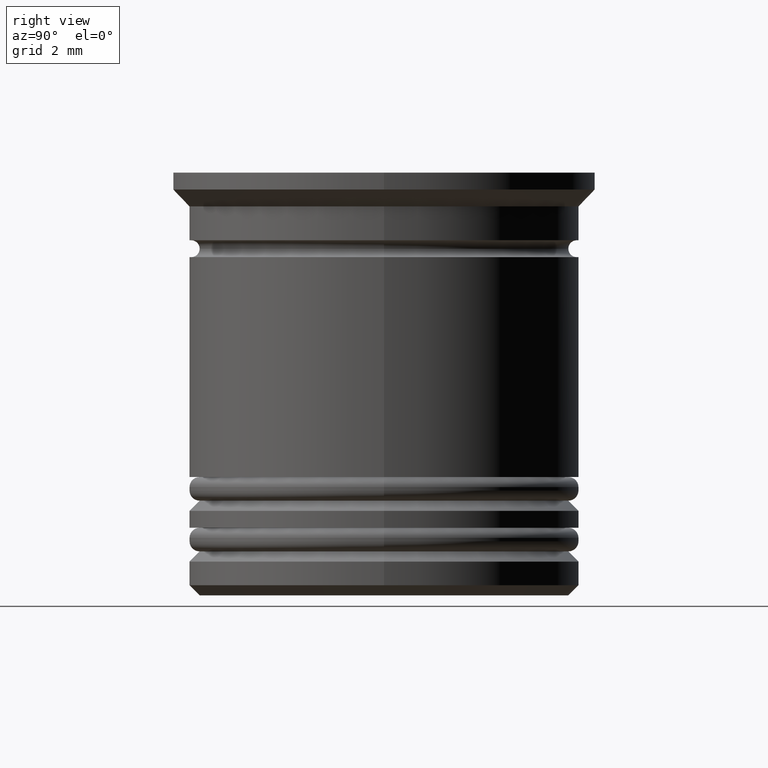
[diagram: clean part render]
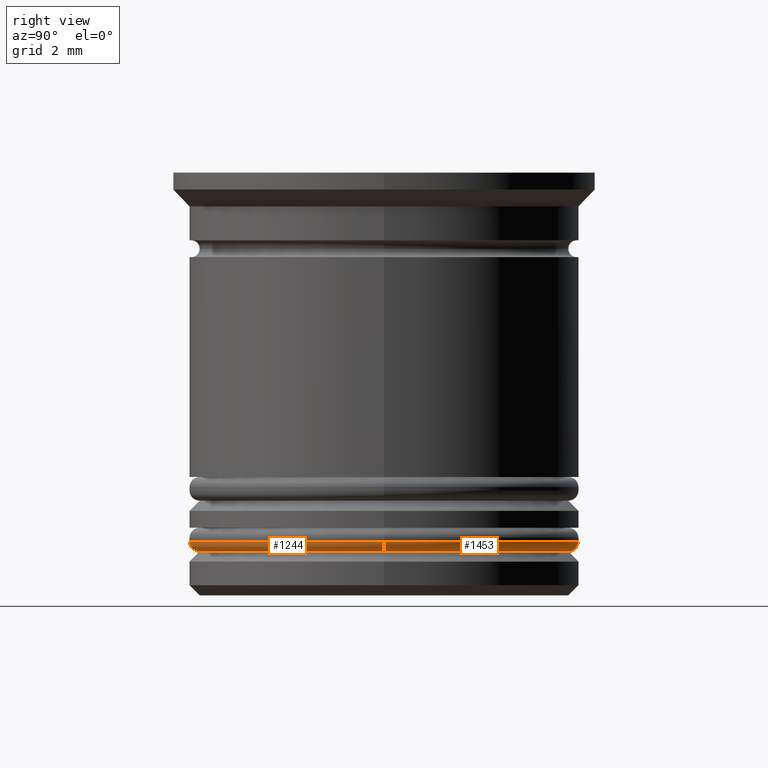
[diagram: same view with one multi-face feature highlighted, each face labeled with its STEP entity id]
A machine part, right view. The highlighted faces form ONE feature: a constant-radius fillet chain: 2 tangent blend faces with common blend radius 0.3 mm. The faces share edges in the B-rep.
Their STEP definitions:
[1] entity #1453 (Torus):
#32 = CARTESIAN_POINT ( 'NONE',  ( -5.450000000000001954, 6.858022075225179538E-16, -11.20000000000000462 ) ) ;
#35 = DIRECTION ( 'NONE',  ( 0.000000000000000000, 0.000000000000000000, 1.000000000000000000 ) ) ;
#44 = DIRECTION ( 'NONE',  ( 1.000000000000000000, 0.000000000000000000, 0.000000000000000000 ) ) ;
#72 = DIRECTION ( 'NONE',  ( 1.000000000000000000, 0.000000000000000000, 0.000000000000000000 ) ) ;
#204 = CARTESIAN_POINT ( 'NONE',  ( -5.750000000000001776, 7.041719095097282852E-16, -10.90000000000000391 ) ) ;
#223 = AXIS2_PLACEMENT_3D ( 'NONE', #1434, #748, #72 ) ;
#266 = CARTESIAN_POINT ( 'NONE',  ( 5.450000000000001954, 0.000000000000000000, -10.90000000000000391 ) ) ;
#274 = DIRECTION ( 'NONE',  ( -1.000000000000000000, 1.224646799147353207E-16, 0.000000000000000000 ) ) ;
#318 = FACE_OUTER_BOUND ( 'NONE', #595, .T. ) ;
#476 = CARTESIAN_POINT ( 'NONE',  ( 5.450000000000001954, 0.000000000000000000, -11.20000000000000462 ) ) ;
#511 = CIRCLE ( 'NONE', #1332, 0.2999999999999999334 ) ;
#583 = CARTESIAN_POINT ( 'NONE',  ( -5.450000000000001954, 6.674325055353077210E-16, -10.90000000000000391 ) ) ;
#595 = EDGE_LOOP ( 'NONE', ( #1428, #733, #925, #1966 ) ) ;
#647 = VERTEX_POINT ( 'NONE', #32 ) ;
#733 = ORIENTED_EDGE ( 'NONE', *, *, #813, .T. ) ;
#748 = DIRECTION ( 'NONE',  ( 0.000000000000000000, 0.000000000000000000, 1.000000000000000000 ) ) ;
#813 = EDGE_CURVE ( 'NONE', #647, #1550, #511, .T. ) ;
#821 = CIRCLE ( 'NONE', #858, 5.450000000000001954 ) ;
#858 = AXIS2_PLACEMENT_3D ( 'NONE', #898, #1354, #1509 ) ;
#898 = CARTESIAN_POINT ( 'NONE',  ( 0.000000000000000000, 0.000000000000000000, -11.20000000000000462 ) ) ;
#925 = ORIENTED_EDGE ( 'NONE', *, *, #1971, .F. ) ;
#1001 = DIRECTION ( 'NONE',  ( 0.000000000000000000, -1.000000000000000000, 0.000000000000000000 ) ) ;
#1043 = AXIS2_PLACEMENT_3D ( 'NONE', #266, #1001, #1616 ) ;
#1183 = DIRECTION ( 'NONE',  ( 1.224646799147353207E-16, 1.000000000000000000, -0.000000000000000000 ) ) ;
#1332 = AXIS2_PLACEMENT_3D ( 'NONE', #583, #1183, #274 ) ;
#1354 = DIRECTION ( 'NONE',  ( -0.000000000000000000, -0.000000000000000000, -1.000000000000000000 ) ) ;
#1394 = CIRCLE ( 'NONE', #1043, 0.2999999999999999334 ) ;
#1428 = ORIENTED_EDGE ( 'NONE', *, *, #1837, .F. ) ;
#1434 = CARTESIAN_POINT ( 'NONE',  ( 0.000000000000000000, 0.000000000000000000, -10.90000000000000391 ) ) ;
#1453 = ADVANCED_FACE ( 'NONE', ( #318 ), #1955, .T. ) ;
#1467 = AXIS2_PLACEMENT_3D ( 'NONE', #1695, #35, #44 ) ;
#1509 = DIRECTION ( 'NONE',  ( 1.000000000000000000, 0.000000000000000000, 0.000000000000000000 ) ) ;
#1520 = EDGE_CURVE ( 'NONE', #1970, #1642, #1394, .T. ) ;
#1550 = VERTEX_POINT ( 'NONE', #204 ) ;
#1616 = DIRECTION ( 'NONE',  ( 0.000000000000000000, 0.000000000000000000, -1.000000000000000000 ) ) ;
#1620 = CARTESIAN_POINT ( 'NONE',  ( 5.750000000000001776, 0.000000000000000000, -10.90000000000000391 ) ) ;
#1642 = VERTEX_POINT ( 'NONE', #1620 ) ;
#1695 = CARTESIAN_POINT ( 'NONE',  ( 0.000000000000000000, 0.000000000000000000, -10.90000000000000391 ) ) ;
#1837 = EDGE_CURVE ( 'NONE', #647, #1970, #821, .T. ) ;
#1927 = CIRCLE ( 'NONE', #1467, 5.750000000000001776 ) ;
#1955 = TOROIDAL_SURFACE ( 'NONE', #223, 5.450000000000001954, 0.2999999999999999889 ) ;
#1966 = ORIENTED_EDGE ( 'NONE', *, *, #1520, .F. ) ;
#1970 = VERTEX_POINT ( 'NONE', #476 ) ;
#1971 = EDGE_CURVE ( 'NONE', #1642, #1550, #1927, .T. ) ;
[2] entity #1244 (Torus):
#32 = CARTESIAN_POINT ( 'NONE',  ( -5.450000000000001954, 6.858022075225179538E-16, -11.20000000000000462 ) ) ;
#84 = CARTESIAN_POINT ( 'NONE',  ( 0.000000000000000000, 0.000000000000000000, -10.90000000000000391 ) ) ;
#204 = CARTESIAN_POINT ( 'NONE',  ( -5.750000000000001776, 7.041719095097282852E-16, -10.90000000000000391 ) ) ;
#215 = CARTESIAN_POINT ( 'NONE',  ( 0.000000000000000000, 0.000000000000000000, -11.20000000000000462 ) ) ;
#266 = CARTESIAN_POINT ( 'NONE',  ( 5.450000000000001954, 0.000000000000000000, -10.90000000000000391 ) ) ;
#271 = FACE_OUTER_BOUND ( 'NONE', #1964, .T. ) ;
#274 = DIRECTION ( 'NONE',  ( -1.000000000000000000, 1.224646799147353207E-16, 0.000000000000000000 ) ) ;
#282 = EDGE_CURVE ( 'NONE', #1550, #1642, #1782, .T. ) ;
#355 = AXIS2_PLACEMENT_3D ( 'NONE', #84, #1908, #409 ) ;
#409 = DIRECTION ( 'NONE',  ( 1.000000000000000000, 0.000000000000000000, 0.000000000000000000 ) ) ;
#476 = CARTESIAN_POINT ( 'NONE',  ( 5.450000000000001954, 0.000000000000000000, -11.20000000000000462 ) ) ;
#511 = CIRCLE ( 'NONE', #1332, 0.2999999999999999334 ) ;
#528 = DIRECTION ( 'NONE',  ( 1.000000000000000000, 0.000000000000000000, 0.000000000000000000 ) ) ;
#583 = CARTESIAN_POINT ( 'NONE',  ( -5.450000000000001954, 6.674325055353077210E-16, -10.90000000000000391 ) ) ;
#647 = VERTEX_POINT ( 'NONE', #32 ) ;
#770 = ORIENTED_EDGE ( 'NONE', *, *, #282, .F. ) ;
#813 = EDGE_CURVE ( 'NONE', #647, #1550, #511, .T. ) ;
#820 = AXIS2_PLACEMENT_3D ( 'NONE', #1009, #1599, #528 ) ;
#941 = DIRECTION ( 'NONE',  ( 1.000000000000000000, 0.000000000000000000, 0.000000000000000000 ) ) ;
#947 = ORIENTED_EDGE ( 'NONE', *, *, #1520, .T. ) ;
#979 = TOROIDAL_SURFACE ( 'NONE', #355, 5.450000000000001954, 0.2999999999999999889 ) ;
#1001 = DIRECTION ( 'NONE',  ( 0.000000000000000000, -1.000000000000000000, 0.000000000000000000 ) ) ;
#1009 = CARTESIAN_POINT ( 'NONE',  ( 0.000000000000000000, 0.000000000000000000, -10.90000000000000391 ) ) ;
#1042 = EDGE_CURVE ( 'NONE', #1970, #647, #1587, .T. ) ;
#1043 = AXIS2_PLACEMENT_3D ( 'NONE', #266, #1001, #1616 ) ;
#1183 = DIRECTION ( 'NONE',  ( 1.224646799147353207E-16, 1.000000000000000000, -0.000000000000000000 ) ) ;
#1244 = ADVANCED_FACE ( 'NONE', ( #271 ), #979, .T. ) ;
#1269 = AXIS2_PLACEMENT_3D ( 'NONE', #215, #1547, #941 ) ;
#1332 = AXIS2_PLACEMENT_3D ( 'NONE', #583, #1183, #274 ) ;
#1394 = CIRCLE ( 'NONE', #1043, 0.2999999999999999334 ) ;
#1407 = ORIENTED_EDGE ( 'NONE', *, *, #1042, .F. ) ;
#1418 = ORIENTED_EDGE ( 'NONE', *, *, #813, .F. ) ;
#1520 = EDGE_CURVE ( 'NONE', #1970, #1642, #1394, .T. ) ;
#1547 = DIRECTION ( 'NONE',  ( -0.000000000000000000, -0.000000000000000000, -1.000000000000000000 ) ) ;
#1550 = VERTEX_POINT ( 'NONE', #204 ) ;
#1587 = CIRCLE ( 'NONE', #1269, 5.450000000000001954 ) ;
#1599 = DIRECTION ( 'NONE',  ( 0.000000000000000000, 0.000000000000000000, 1.000000000000000000 ) ) ;
#1616 = DIRECTION ( 'NONE',  ( 0.000000000000000000, 0.000000000000000000, -1.000000000000000000 ) ) ;
#1620 = CARTESIAN_POINT ( 'NONE',  ( 5.750000000000001776, 0.000000000000000000, -10.90000000000000391 ) ) ;
#1642 = VERTEX_POINT ( 'NONE', #1620 ) ;
#1782 = CIRCLE ( 'NONE', #820, 5.750000000000001776 ) ;
#1908 = DIRECTION ( 'NONE',  ( 0.000000000000000000, 0.000000000000000000, 1.000000000000000000 ) ) ;
#1964 = EDGE_LOOP ( 'NONE', ( #1418, #1407, #947, #770 ) ) ;
#1970 = VERTEX_POINT ( 'NONE', #476 ) ;